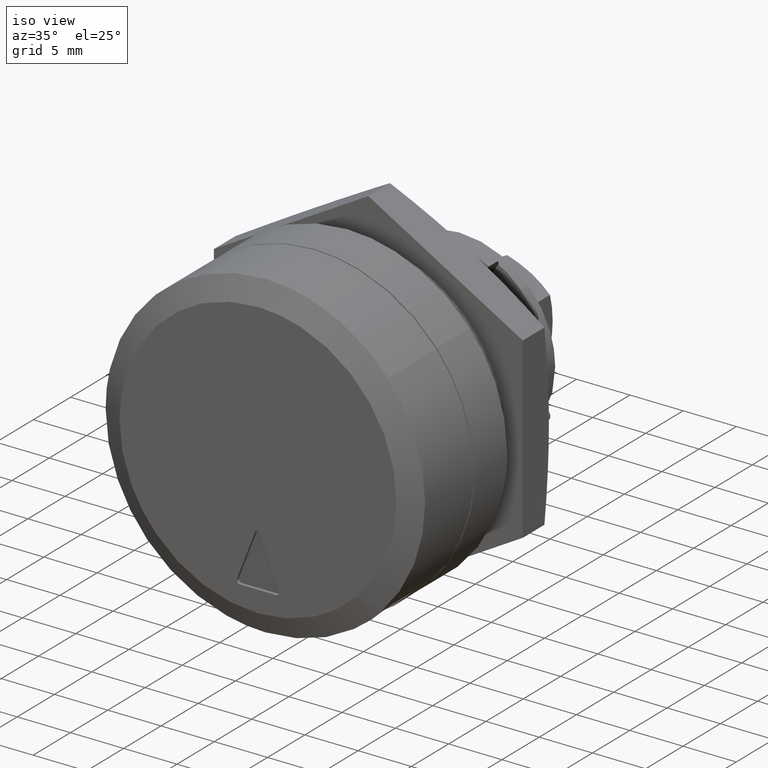
[diagram: clean part render]
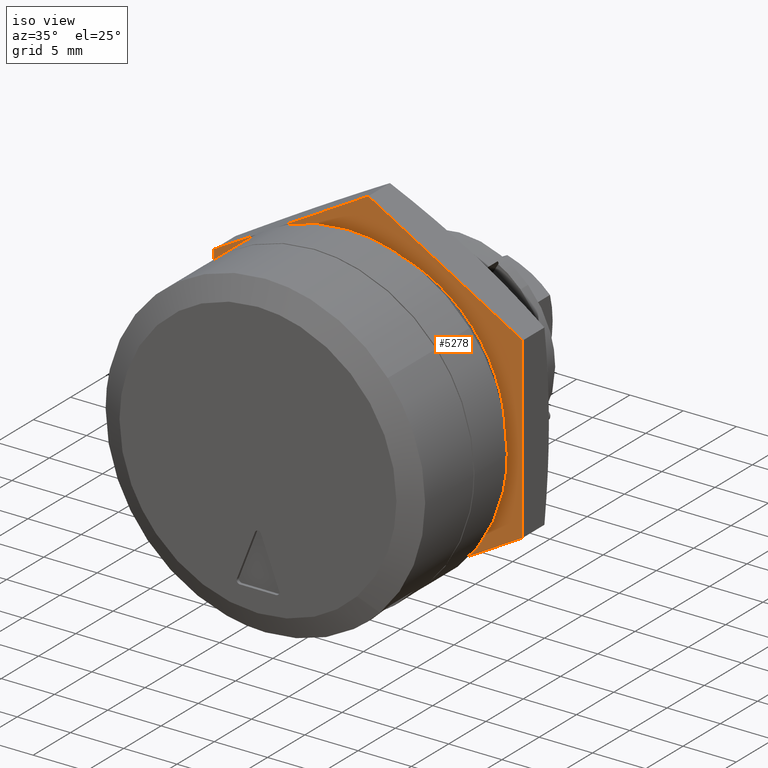
[diagram: same view with one face highlighted and labeled with its STEP entity id]
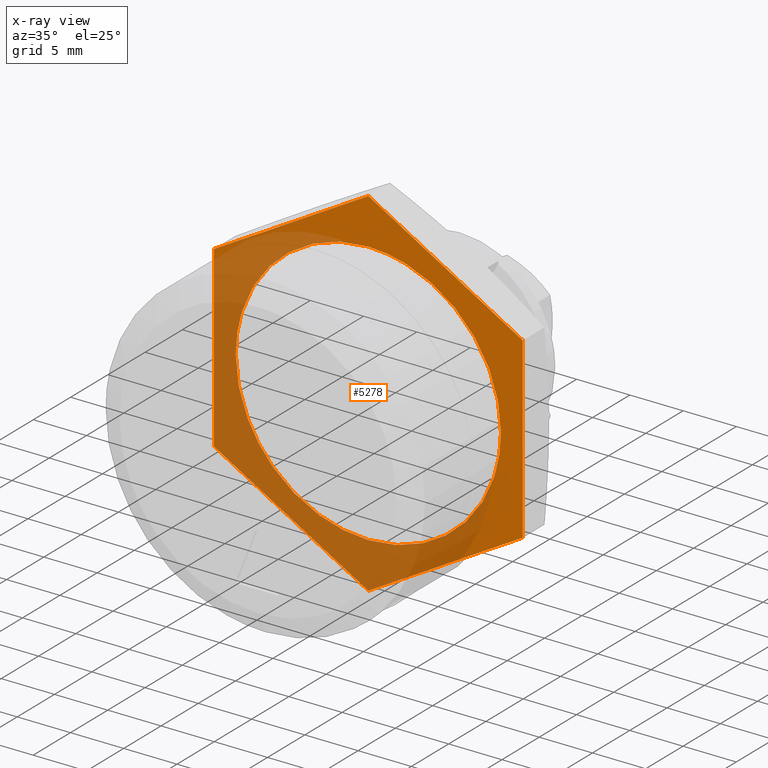
[diagram: x-ray of the same camera — body ghosted, the highlighted face saturated]
A machine part, iso view. The second image highlights one B-rep face of the part: STEP entity #5278.
The next image is the same camera in x-ray: the body ghosted, the highlighted face saturated — about 54% of this face is hidden behind the body in this view.
In plain terms, the highlighted face is a freeform B-spline surface patch.
Its self-contained STEP definition (entity closure, byte-faithful):
#4522=CARTESIAN_POINT('',(57.698422999999892,-9.114042525536423,-8.481551695788513));
#4523=VERTEX_POINT('',#4522);
#4529=CARTESIAN_POINT('',(57.698422999999892,-12.449999999999701,0.000001558137922));
#4530=VERTEX_POINT('',#4529);
#4531=CARTESIAN_POINT('',(57.698422999999892,-9.114042525536423,-8.481551695788513));
#4532=CARTESIAN_POINT('',(57.698422999999927,-9.776388792148689,-7.770161301883007));
#4533=CARTESIAN_POINT('',(57.698422999999778,-10.585864119013101,-6.664805594009728));
#4534=CARTESIAN_POINT('',(57.698423000000084,-11.530357711310961,-4.798109524626622));
#4535=CARTESIAN_POINT('',(57.698422999999359,-12.233653857076471,-2.770007654724049));
#4536=CARTESIAN_POINT('',(57.698423000000290,-12.450238144096360,-1.020580841375935));
#4537=CARTESIAN_POINT('',(57.698422999999892,-12.449999999999701,0.000001558137922));
#4538=B_SPLINE_CURVE_WITH_KNOTS('',3,(#4531,#4532,#4533,#4534,#4535,#4536,#4537),.UNSPECIFIED.,.F.,.U.,(4,1,1,1,4),(4.124574E-009,2.915917536872470,4.082284256760554,6.269216291858752,9.330927045876550),.UNSPECIFIED.);
#4539=EDGE_CURVE('',#4523,#4530,#4538,.T.);
#4541=CARTESIAN_POINT('',(57.698422999999892,0.0,12.449999999999800));
#4542=VERTEX_POINT('',#4541);
#4543=CARTESIAN_POINT('',(57.698422999999892,-12.449999999999701,0.000001558137922));
#4544=CARTESIAN_POINT('',(57.698423000000012,-12.450198938307031,0.942188281014213));
#4545=CARTESIAN_POINT('',(57.698422999999622,-12.264080396586129,2.571803869522904));
#4546=CARTESIAN_POINT('',(57.698423000000290,-11.617354821231180,4.591573006354515));
#4547=CARTESIAN_POINT('',(57.698422999999572,-10.883545776503571,6.106715078458527));
#4548=CARTESIAN_POINT('',(57.698423000000169,-9.863885191749551,7.695582084455513));
#4549=CARTESIAN_POINT('',(57.698422999999117,-8.621364977299049,9.058063437827844));
#4550=CARTESIAN_POINT('',(57.698423000000979,-7.224301910067976,10.168998720551791));
#4551=CARTESIAN_POINT('',(57.698422999998677,-5.931543110197797,10.987675081401891));
#4552=CARTESIAN_POINT('',(57.698423000000297,-4.215759669202307,11.780029827835310));
#4553=CARTESIAN_POINT('',(57.698423000001632,-2.164443139268201,12.327409308598090));
#4554=CARTESIAN_POINT('',(57.698422999997597,-0.687526998379347,12.450032277001039));
#4555=CARTESIAN_POINT('',(57.698422999999892,0.0,12.449999999999800));
#4556=B_SPLINE_CURVE_WITH_KNOTS('',3,(#4543,#4544,#4545,#4546,#4547,#4548,#4549,#4550,#4551,#4552,#4553,#4554,#4555),.UNSPECIFIED.,.F.,.U.,(4,1,1,1,1,1,1,1,1,1,4),(0.000000066453143,2.826515667639580,4.889111151711804,6.340578843698282,7.868423615541790,10.542118040915890,11.840807665455751,13.215866798307781,15.125688229161080,17.493858466844671,19.556444068743030),.UNSPECIFIED.);
#4557=EDGE_CURVE('',#4530,#4542,#4556,.T.);
#4559=CARTESIAN_POINT('',(57.698422999999892,12.449999999999701,-0.000001558137915));
#4560=VERTEX_POINT('',#4559);
#4561=CARTESIAN_POINT('',(57.698422999999892,0.0,12.449999999999800));
#4562=CARTESIAN_POINT('',(57.698422999999757,0.942195067428526,12.450214568736330));
#4563=CARTESIAN_POINT('',(57.698423000000062,2.240765659068404,12.301847458081680));
#4564=CARTESIAN_POINT('',(57.698422999999920,4.058527328475894,11.798773148886751));
#4565=CARTESIAN_POINT('',(57.698422999999949,5.431583304860817,11.244798655545500));
#4566=CARTESIAN_POINT('',(57.698422999999323,7.049538328732651,10.321711609124010));
#4567=CARTESIAN_POINT('',(57.698423000000410,8.490128673717718,9.175971439303824));
#4568=CARTESIAN_POINT('',(57.698422999999572,9.836039308463834,7.709156966537104));
#4569=CARTESIAN_POINT('',(57.698422999999998,10.834287743946581,6.225048362314475));
#4570=CARTESIAN_POINT('',(57.698422999999792,11.613894356790160,4.589642673893261));
#4571=CARTESIAN_POINT('',(57.698423000000268,12.260051395784020,2.571768900023141));
#4572=CARTESIAN_POINT('',(57.698422999999487,12.450235472547460,0.993119001846812));
#4573=CARTESIAN_POINT('',(57.698422999999892,12.449999999999701,-0.000001558137915));
#4574=B_SPLINE_CURVE_WITH_KNOTS('',3,(#4561,#4562,#4563,#4564,#4565,#4566,#4567,#4568,#4569,#4570,#4571,#4572,#4573),.UNSPECIFIED.,.F.,.U.,(4,1,1,1,1,1,1,1,1,1,4),(0.000000066294792,2.826515921519935,3.896005145815268,5.653036190782641,7.257290738034993,9.472669975896224,11.153255067100369,13.215867985632419,14.820119268524520,16.577156518134810,19.556445825130481),.UNSPECIFIED.);
#4575=EDGE_CURVE('',#4542,#4560,#4574,.T.);
#4577=CARTESIAN_POINT('',(57.698422999999892,8.988922541814628,-8.614045578464637));
#4578=VERTEX_POINT('',#4577);
#4579=CARTESIAN_POINT('',(57.698422999999892,12.449999999999701,-0.000001558137915));
#4580=CARTESIAN_POINT('',(57.698422999999927,12.450073125930190,-0.743217726248470));
#4581=CARTESIAN_POINT('',(57.698422999999870,12.320935469994250,-2.180062320591981));
#4582=CARTESIAN_POINT('',(57.698422999999877,11.714312150204240,-4.436849383225335));
#4583=CARTESIAN_POINT('',(57.698423000000062,10.644031273613770,-6.631653184381488));
#4584=CARTESIAN_POINT('',(57.698422999999778,9.571787815582940,-8.005969333974772));
#4585=CARTESIAN_POINT('',(57.698422999999892,8.988922541814628,-8.614045578464637));
#4586=B_SPLINE_CURVE_WITH_KNOTS('',3,(#4579,#4580,#4581,#4582,#4583,#4584,#4585),.UNSPECIFIED.,.F.,.U.,(4,1,1,1,4),(4.565679E-009,2.229647836579252,4.310653423744494,6.986229912572948,9.513164156553073),.UNSPECIFIED.);
#4587=EDGE_CURVE('',#4560,#4578,#4586,.T.);
#4695=CARTESIAN_POINT('',(57.698422999999892,0.0,-12.449999999999800));
#4696=VERTEX_POINT('',#4695);
#4697=CARTESIAN_POINT('',(57.698422999999892,8.988922541814628,-8.614045578464637));
#4698=CARTESIAN_POINT('',(57.698422999999813,8.283365411189402,-9.350735407689831));
#4699=CARTESIAN_POINT('',(57.698422999999927,7.139146706722674,-10.282637224387710));
#4700=CARTESIAN_POINT('',(57.698422999999970,5.399243723939157,-11.249705607000250));
#4701=CARTESIAN_POINT('',(57.698422999999899,3.896929195803344,-11.868590455754781));
#4702=CARTESIAN_POINT('',(57.698423000000183,2.066189963218756,-12.333987399533861));
#4703=CARTESIAN_POINT('',(57.698422999999693,0.706171808835664,-12.450050029356140));
#4704=CARTESIAN_POINT('',(57.698422999999892,0.0,-12.449999999999800));
#4705=B_SPLINE_CURVE_WITH_KNOTS('',3,(#4697,#4698,#4699,#4700,#4701,#4702,#4703,#4704),.UNSPECIFIED.,.F.,.U.,(4,1,1,1,1,4),(0.000000018231573,3.060078578173451,4.393966243365199,5.963209260256931,7.924811820795378,10.043321978546560),.UNSPECIFIED.);
#4706=EDGE_CURVE('',#4578,#4696,#4705,.T.);
#4708=CARTESIAN_POINT('',(57.698422999999892,0.0,-12.449999999999800));
#4709=CARTESIAN_POINT('',(57.698422999999927,-0.878771365491205,-12.450139220703919));
#4710=CARTESIAN_POINT('',(57.698423000000041,-2.290042566644908,-12.299922173424310));
#4711=CARTESIAN_POINT('',(57.698422999999821,-4.266984549962741,-11.740143092772900));
#4712=CARTESIAN_POINT('',(57.698423000000027,-6.049576781161403,-10.950410891026770));
#4713=CARTESIAN_POINT('',(57.698422999999828,-7.719488967820973,-9.839225873642791));
#4714=CARTESIAN_POINT('',(57.698422999999892,-8.714950998161532,-8.910422645763191));
#4715=CARTESIAN_POINT('',(57.698422999999892,-9.114042525536423,-8.481551695788513));
#4716=B_SPLINE_CURVE_WITH_KNOTS('',3,(#4708,#4709,#4710,#4711,#4712,#4713,#4714,#4715),.UNSPECIFIED.,.F.,.U.,(4,1,1,1,1,4),(0.000000018743844,2.636277795713416,4.234027190580334,6.151307127801953,8.468042567289285,10.225559331018550),.UNSPECIFIED.);
#4717=EDGE_CURVE('',#4696,#4523,#4716,.T.);
#4961=CARTESIAN_POINT('',(57.698422999999892,-0.000000732050604,-16.743158000000001));
#4962=VERTEX_POINT('',#4961);
#4970=CARTESIAN_POINT('',(57.698422999999892,14.500000000000000,-8.371578000000101));
#4971=VERTEX_POINT('',#4970);
#4972=CARTESIAN_POINT('',(57.698422999999892,14.500000000000000,-8.371578000000101));
#4973=CARTESIAN_POINT('',(57.698422999999892,-0.000000732050604,-16.743158000000001));
#4974=QUASI_UNIFORM_CURVE('',1,(#4972,#4973),.UNSPECIFIED.,.F.,.U.);
#4975=EDGE_CURVE('',#4971,#4962,#4974,.T.);
#5014=CARTESIAN_POINT('',(57.698422999999892,14.500000000000000,8.371580999999999));
#5015=VERTEX_POINT('',#5014);
#5016=CARTESIAN_POINT('',(57.698422999999892,14.500000000000000,8.371580999999999));
#5017=CARTESIAN_POINT('',(57.698422999999892,14.500000000000000,-8.371578000000101));
#5018=QUASI_UNIFORM_CURVE('',1,(#5016,#5017),.UNSPECIFIED.,.F.,.U.);
#5019=EDGE_CURVE('',#5015,#4971,#5018,.T.);
#5065=CARTESIAN_POINT('',(57.698422999999892,0.000000999999884,16.743157000000000));
#5066=VERTEX_POINT('',#5065);
#5067=CARTESIAN_POINT('',(57.698422999999892,0.000000999999884,16.743157000000000));
#5068=CARTESIAN_POINT('',(57.698422999999892,14.500000000000000,8.371580999999999));
#5069=QUASI_UNIFORM_CURVE('',1,(#5067,#5068),.UNSPECIFIED.,.F.,.U.);
#5070=EDGE_CURVE('',#5066,#5015,#5069,.T.);
#5109=CARTESIAN_POINT('',(57.698422999999892,-14.500000000000000,8.371578999999910));
#5110=VERTEX_POINT('',#5109);
#5111=CARTESIAN_POINT('',(57.698422999999892,-14.500000000000000,8.371578999999910));
#5112=CARTESIAN_POINT('',(57.698422999999892,0.000000999999884,16.743157000000000));
#5113=QUASI_UNIFORM_CURVE('',1,(#5111,#5112),.UNSPECIFIED.,.F.,.U.);
#5114=EDGE_CURVE('',#5110,#5066,#5113,.T.);
#5153=CARTESIAN_POINT('',(57.698422999999892,-14.500000000000000,-8.371577000000100));
#5154=VERTEX_POINT('',#5153);
#5155=CARTESIAN_POINT('',(57.698422999999892,-14.500000000000000,-8.371577000000100));
#5156=CARTESIAN_POINT('',(57.698422999999892,-14.500000000000000,8.371578999999910));
#5157=QUASI_UNIFORM_CURVE('',1,(#5155,#5156),.UNSPECIFIED.,.F.,.U.);
#5158=EDGE_CURVE('',#5154,#5110,#5157,.T.);
#5204=CARTESIAN_POINT('',(57.698422999999892,-0.000000732050604,-16.743158000000001));
#5205=CARTESIAN_POINT('',(57.698422999999892,-14.500000000000000,-8.371577000000100));
#5206=QUASI_UNIFORM_CURVE('',1,(#5204,#5205),.UNSPECIFIED.,.F.,.U.);
#5207=EDGE_CURVE('',#4962,#5154,#5206,.T.);
#5257=CARTESIAN_POINT('',(57.698422999999892,-15.948549943792370,18.415797740655890));
#5258=CARTESIAN_POINT('',(57.698422999999892,-15.948549943792370,-18.415800237610821));
#5259=CARTESIAN_POINT('',(57.698422999999892,15.948550721632991,18.415797740655890));
#5260=CARTESIAN_POINT('',(57.698422999999892,15.948550721632991,-18.415800237610821));
#5261=B_SPLINE_SURFACE_WITH_KNOTS('',1,1,((#5257,#5259),(#5258,#5260)),.UNSPECIFIED.,.F.,.F.,.U.,(2,2),(2,2),(0.0,36.831597978266707),(0.0,31.897100665425359),.UNSPECIFIED.);
#5262=ORIENTED_EDGE('',*,*,#4975,.T.);
#5263=ORIENTED_EDGE('',*,*,#5207,.T.);
#5264=ORIENTED_EDGE('',*,*,#5158,.T.);
#5265=ORIENTED_EDGE('',*,*,#5114,.T.);
#5266=ORIENTED_EDGE('',*,*,#5070,.T.);
#5267=ORIENTED_EDGE('',*,*,#5019,.T.);
#5268=EDGE_LOOP('',(#5262,#5263,#5264,#5265,#5266,#5267));
#5269=FACE_OUTER_BOUND('',#5268,.T.);
#5270=ORIENTED_EDGE('',*,*,#4575,.F.);
#5271=ORIENTED_EDGE('',*,*,#4557,.F.);
#5272=ORIENTED_EDGE('',*,*,#4539,.F.);
#5273=ORIENTED_EDGE('',*,*,#4717,.F.);
#5274=ORIENTED_EDGE('',*,*,#4706,.F.);
#5275=ORIENTED_EDGE('',*,*,#4587,.F.);
#5276=EDGE_LOOP('',(#5270,#5271,#5272,#5273,#5274,#5275));
#5277=FACE_BOUND('',#5276,.T.);
#5278=ADVANCED_FACE('',(#5269,#5277),#5261,.F.);